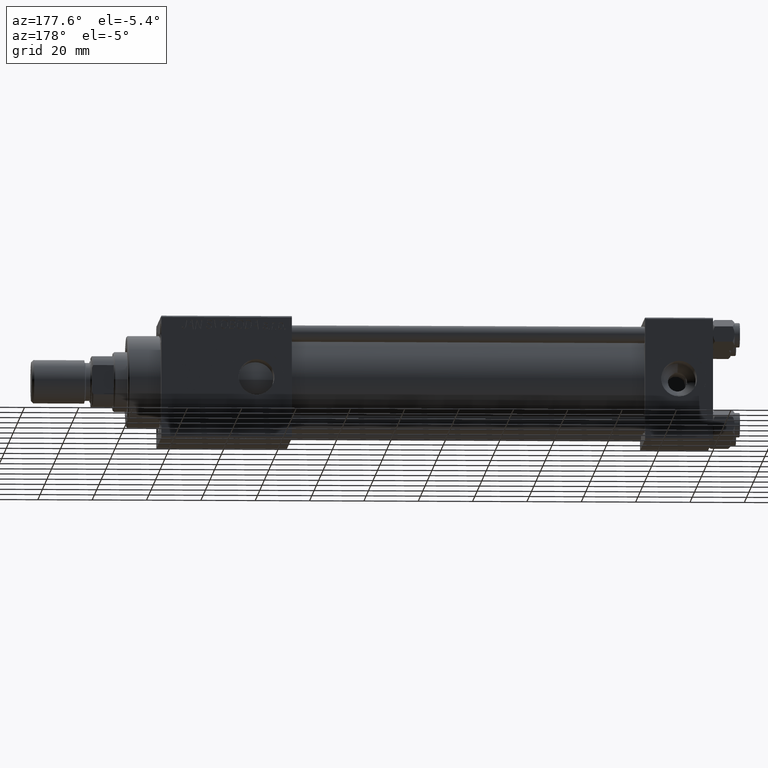
[diagram: clean part render]
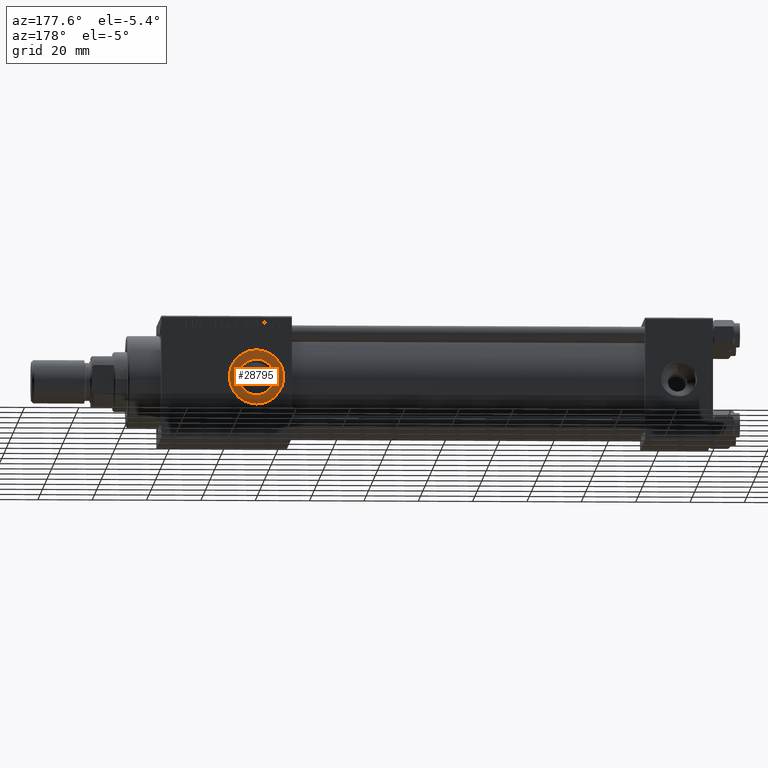
[diagram: same view with one face highlighted and labeled with its STEP entity id]
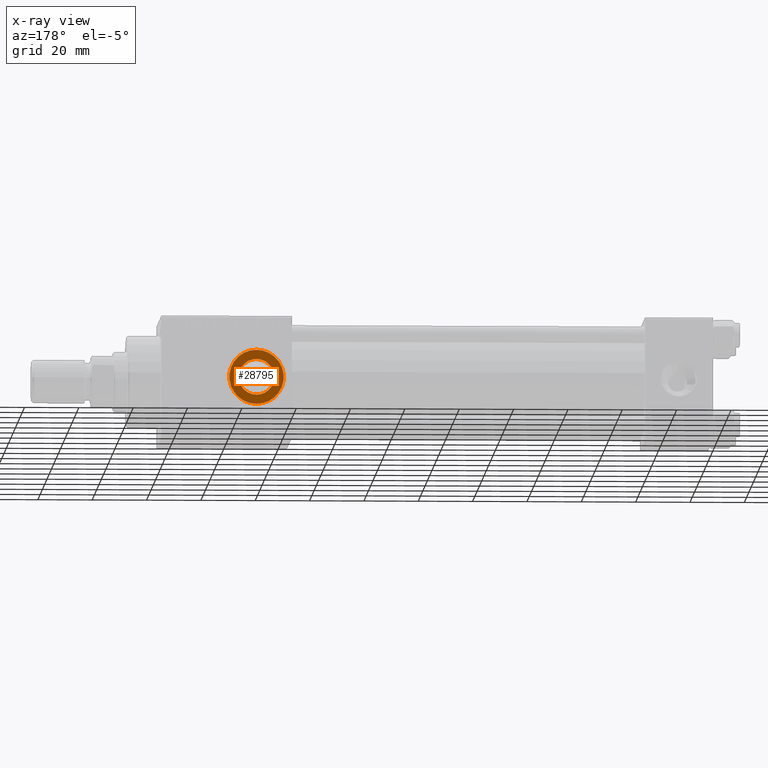
[diagram: x-ray of the same camera — body ghosted, the highlighted face saturated]
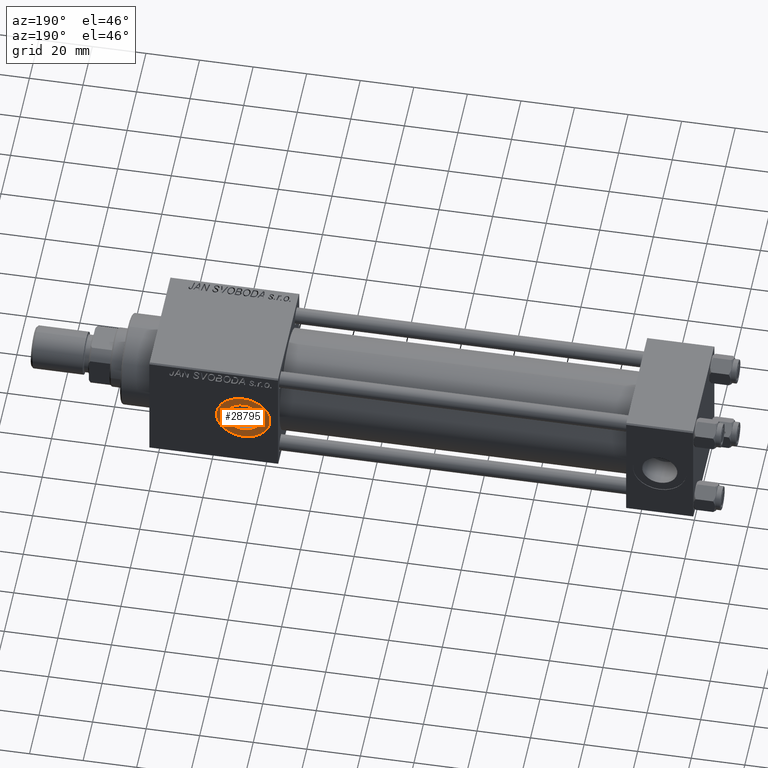
[diagram: same view with one face highlighted and labeled with its STEP entity id]
A machine part, auxiliary view. The second image highlights one B-rep face of the part: STEP entity #28795.
The next image is the same camera in x-ray: the body ghosted, the highlighted face saturated — about 0% of this face is hidden behind the body in this view.
A second angle (auxiliary view) of the same face is appended — the face is thin or edge-on in the first view.
In plain terms, the highlighted planar face has unit normal (0, 1, 0).
Its self-contained STEP definition (entity closure, byte-faithful):
#1632 = ORIENTED_EDGE ( 'NONE', *, *, #2630, .F. ) ;
#2630 = EDGE_CURVE ( 'NONE', #50057, #29332, #9005, .T. ) ;
#3617 = VERTEX_POINT ( 'NONE', #20735 ) ;
#4086 = DIRECTION ( 'NONE',  ( 0.000000000000000000, -0.000000000000000000, 1.000000000000000000 ) ) ;
#4229 = DIRECTION ( 'NONE',  ( 0.000000000000000000, 1.000000000000000000, 0.000000000000000000 ) ) ;
#4582 = ORIENTED_EDGE ( 'NONE', *, *, #5224, .T. ) ;
#5224 = EDGE_CURVE ( 'NONE', #3617, #41437, #16793, .T. ) ;
#6941 = DIRECTION ( 'NONE',  ( 0.000000000000000000, 1.000000000000000000, 0.000000000000000000 ) ) ;
#7968 = CARTESIAN_POINT ( 'NONE',  ( 168.0000000000000000, 22.30000000000000426, 0.000000000000000000 ) ) ;
#8038 = EDGE_LOOP ( 'NONE', ( #40400, #4582 ) ) ;
#9005 = CIRCLE ( 'NONE', #40457, 6.580000000000015170 ) ;
#11370 = DIRECTION ( 'NONE',  ( 0.000000000000000000, 1.000000000000000000, 0.000000000000000000 ) ) ;
#15299 = AXIS2_PLACEMENT_3D ( 'NONE', #43824, #11370, #15631 ) ;
#15631 = DIRECTION ( 'NONE',  ( 0.000000000000000000, 0.000000000000000000, 1.000000000000000000 ) ) ;
#16793 = CIRCLE ( 'NONE', #19328, 9.999999999999978684 ) ;
#17333 = DIRECTION ( 'NONE',  ( 0.000000000000000000, 1.000000000000000000, 0.000000000000000000 ) ) ;
#19328 = AXIS2_PLACEMENT_3D ( 'NONE', #25328, #17333, #20286 ) ;
#20286 = DIRECTION ( 'NONE',  ( 0.000000000000000000, 0.000000000000000000, 1.000000000000000000 ) ) ;
#20446 = EDGE_LOOP ( 'NONE', ( #1632, #48112 ) ) ;
#20735 = CARTESIAN_POINT ( 'NONE',  ( 168.0000000000000000, 22.30000000000000426, -9.999999999999978684 ) ) ;
#20909 = EDGE_CURVE ( 'NONE', #29332, #50057, #46764, .T. ) ;
#24198 = DIRECTION ( 'NONE',  ( 0.000000000000000000, 0.000000000000000000, 1.000000000000000000 ) ) ;
#25328 = CARTESIAN_POINT ( 'NONE',  ( 168.0000000000000000, 22.30000000000000426, 0.000000000000000000 ) ) ;
#25816 = CARTESIAN_POINT ( 'NONE',  ( 168.0000000000000000, 22.30000000000000426, -6.580000000000015170 ) ) ;
#27176 = CARTESIAN_POINT ( 'NONE',  ( 168.0000000000000000, 22.30000000000000426, 0.000000000000000000 ) ) ;
#28795 = ADVANCED_FACE ( 'NONE', ( #44186, #43396 ), #43136, .T. ) ;
#29166 = DIRECTION ( 'NONE',  ( 0.000000000000000000, 1.000000000000000000, 0.000000000000000000 ) ) ;
#29332 = VERTEX_POINT ( 'NONE', #25816 ) ;
#31998 = AXIS2_PLACEMENT_3D ( 'NONE', #7968, #4229, #24198 ) ;
#32604 = CARTESIAN_POINT ( 'NONE',  ( 168.0000000000000000, 22.30000000000000426, 9.999999999999978684 ) ) ;
#33676 = DIRECTION ( 'NONE',  ( 0.000000000000000000, 0.000000000000000000, 1.000000000000000000 ) ) ;
#34984 = CARTESIAN_POINT ( 'NONE',  ( 168.0000000000000000, 22.30000000000000426, 6.580000000000015170 ) ) ;
#36735 = AXIS2_PLACEMENT_3D ( 'NONE', #27176, #6941, #4086 ) ;
#40400 = ORIENTED_EDGE ( 'NONE', *, *, #43804, .T. ) ;
#40457 = AXIS2_PLACEMENT_3D ( 'NONE', #49396, #29166, #33676 ) ;
#41437 = VERTEX_POINT ( 'NONE', #32604 ) ;
#43136 = PLANE ( 'NONE',  #36735 ) ;
#43396 = FACE_OUTER_BOUND ( 'NONE', #8038, .T. ) ;
#43804 = EDGE_CURVE ( 'NONE', #41437, #3617, #50726, .T. ) ;
#43824 = CARTESIAN_POINT ( 'NONE',  ( 168.0000000000000000, 22.30000000000000426, 0.000000000000000000 ) ) ;
#44186 = FACE_BOUND ( 'NONE', #20446, .T. ) ;
#46764 = CIRCLE ( 'NONE', #15299, 6.580000000000015170 ) ;
#48112 = ORIENTED_EDGE ( 'NONE', *, *, #20909, .F. ) ;
#49396 = CARTESIAN_POINT ( 'NONE',  ( 168.0000000000000000, 22.30000000000000426, 0.000000000000000000 ) ) ;
#50057 = VERTEX_POINT ( 'NONE', #34984 ) ;
#50726 = CIRCLE ( 'NONE', #31998, 9.999999999999978684 ) ;